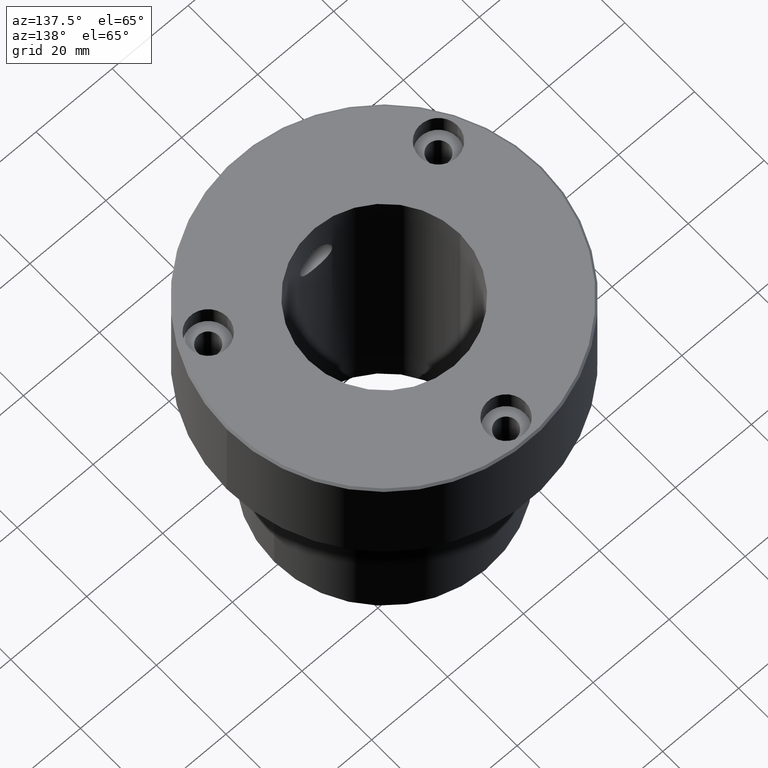
[diagram: clean part render]
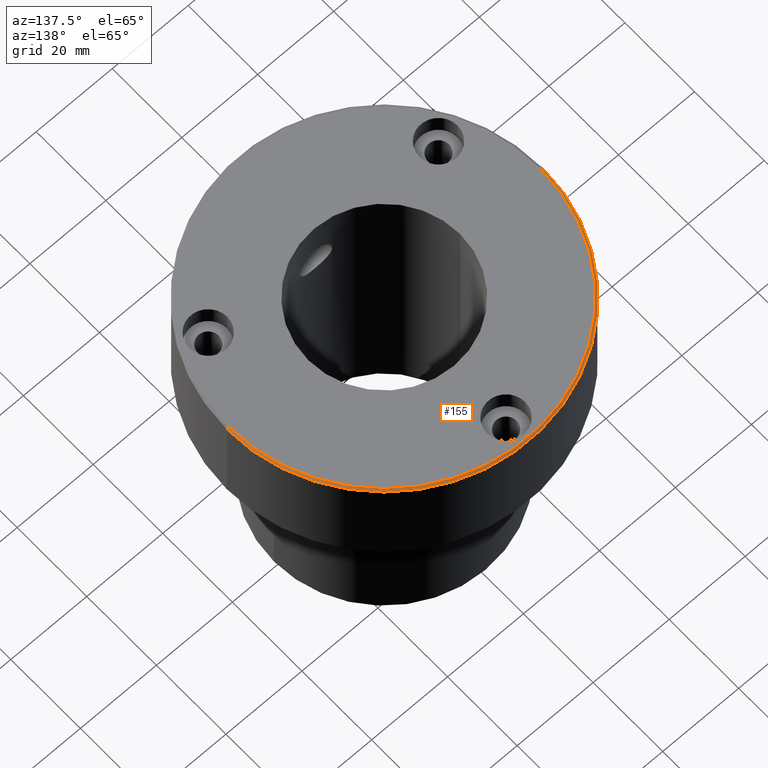
[diagram: same view with one face highlighted and labeled with its STEP entity id]
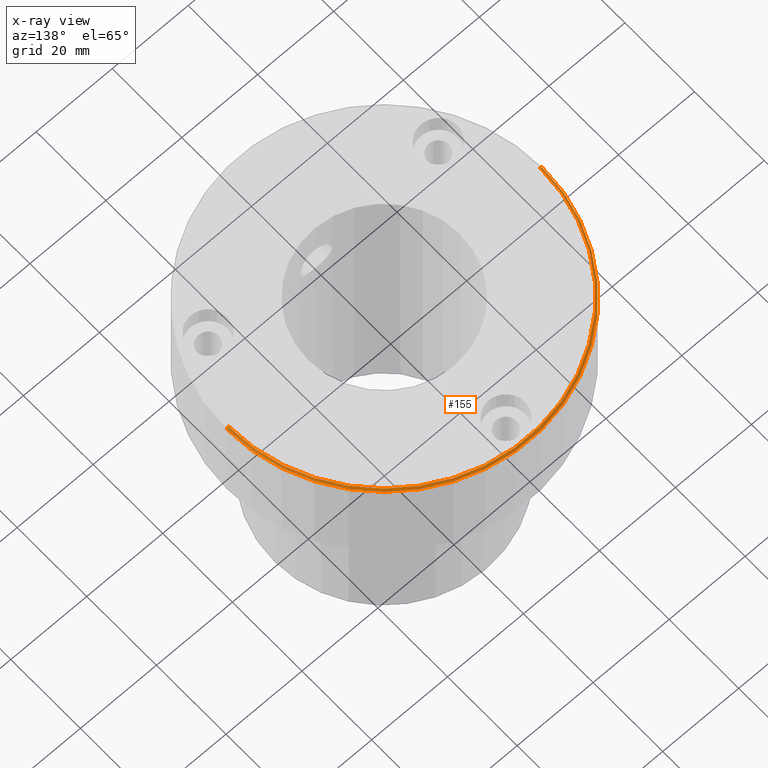
[diagram: x-ray of the same camera — body ghosted, the highlighted face saturated]
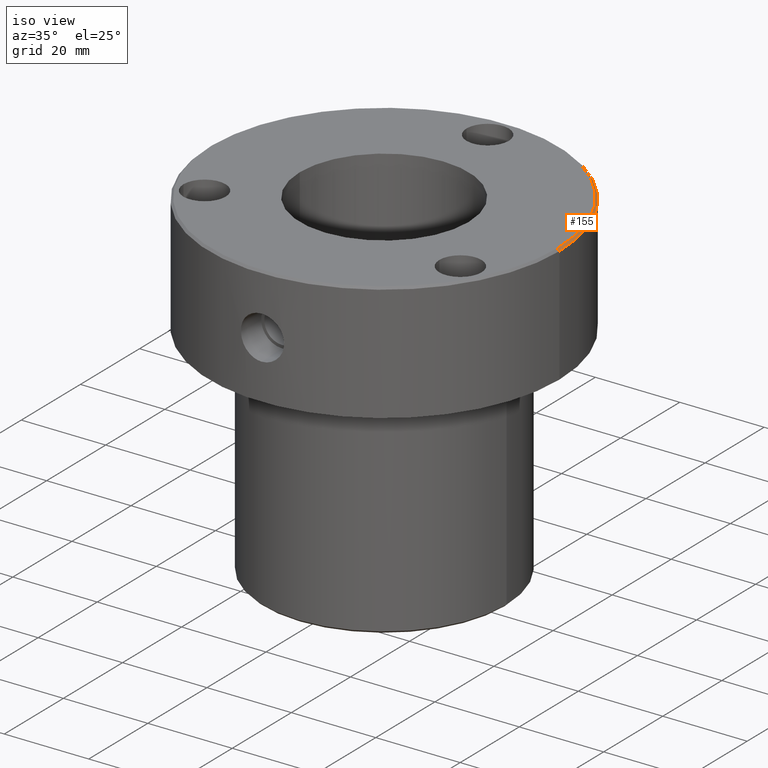
[diagram: same view with one face highlighted and labeled with its STEP entity id]
A machine part, auxiliary view. The second image highlights one B-rep face of the part: STEP entity #155.
The next image is the same camera in x-ray: the body ghosted, the highlighted face saturated — about 0% of this face is hidden behind the body in this view.
A second angle (iso view) of the same face is appended — the face is thin or edge-on in the first view.
In plain terms, the highlighted conical surface has half-angle 45 deg.
Its self-contained STEP definition (entity closure, byte-faithful):
#15 = VERTEX_POINT ( 'NONE', #992 ) ;
#30 = CARTESIAN_POINT ( 'NONE',  ( 0.000000000000000000, 0.000000000000000000, 0.000000000000000000 ) ) ;
#35 = DIRECTION ( 'NONE',  ( -1.000000000000000000, 0.000000000000000000, 0.000000000000000000 ) ) ;
#61 = CARTESIAN_POINT ( 'NONE',  ( -40.99999999999999289, 0.000000000000000000, 0.000000000000000000 ) ) ;
#126 = VERTEX_POINT ( 'NONE', #889 ) ;
#136 = ORIENTED_EDGE ( 'NONE', *, *, #290, .F. ) ;
#155 = ADVANCED_FACE ( 'NONE', ( #160 ), #819, .T. ) ;
#160 = FACE_OUTER_BOUND ( 'NONE', #529, .T. ) ;
#228 = DIRECTION ( 'NONE',  ( 0.000000000000000000, 0.000000000000000000, -1.000000000000000000 ) ) ;
#239 = ORIENTED_EDGE ( 'NONE', *, *, #1021, .F. ) ;
#271 = VECTOR ( 'NONE', #360, 1000.000000000000000 ) ;
#290 = EDGE_CURVE ( 'NONE', #326, #996, #831, .T. ) ;
#296 = CARTESIAN_POINT ( 'NONE',  ( -41.50000000000000000, 5.082284216461515748E-15, -0.5000000000000143219 ) ) ;
#319 = CARTESIAN_POINT ( 'NONE',  ( 40.99999999999999289, 5.021051876504148174E-15, 0.000000000000000000 ) ) ;
#326 = VERTEX_POINT ( 'NONE', #1043 ) ;
#360 = DIRECTION ( 'NONE',  ( -0.7071067811865426878, 0.000000000000000000, -0.7071067811865524577 ) ) ;
#399 = EDGE_CURVE ( 'NONE', #126, #326, #630, .T. ) ;
#413 = LINE ( 'NONE', #319, #989 ) ;
#453 = DIRECTION ( 'NONE',  ( 1.000000000000000000, 0.000000000000000000, 0.000000000000000000 ) ) ;
#504 = AXIS2_PLACEMENT_3D ( 'NONE', #612, #969, #596 ) ;
#529 = EDGE_LOOP ( 'NONE', ( #666, #1063, #239, #136 ) ) ;
#596 = DIRECTION ( 'NONE',  ( 1.000000000000000000, 0.000000000000000000, 0.000000000000000000 ) ) ;
#604 = AXIS2_PLACEMENT_3D ( 'NONE', #30, #228, #35 ) ;
#612 = CARTESIAN_POINT ( 'NONE',  ( 0.000000000000000000, 0.000000000000000000, -0.5000000000000143219 ) ) ;
#630 = CIRCLE ( 'NONE', #1160, 40.99999999999999289 ) ;
#666 = ORIENTED_EDGE ( 'NONE', *, *, #399, .F. ) ;
#696 = DIRECTION ( 'NONE',  ( 0.7071067811865426878, 8.659560562354874926E-17, -0.7071067811865524577 ) ) ;
#819 = CONICAL_SURFACE ( 'NONE', #604, 40.99999999999999289, 0.7853981633974415066 ) ;
#831 = LINE ( 'NONE', #61, #271 ) ;
#835 = DIRECTION ( 'NONE',  ( -0.000000000000000000, -0.000000000000000000, 1.000000000000000000 ) ) ;
#889 = CARTESIAN_POINT ( 'NONE',  ( 40.99999999999999289, 5.051668046482831961E-15, 0.000000000000000000 ) ) ;
#968 = CIRCLE ( 'NONE', #504, 41.50000000000000000 ) ;
#969 = DIRECTION ( 'NONE',  ( 0.000000000000000000, 0.000000000000000000, -1.000000000000000000 ) ) ;
#989 = VECTOR ( 'NONE', #696, 1000.000000000000000 ) ;
#992 = CARTESIAN_POINT ( 'NONE',  ( 41.50000000000000000, 0.000000000000000000, -0.5000000000000143219 ) ) ;
#996 = VERTEX_POINT ( 'NONE', #296 ) ;
#1021 = EDGE_CURVE ( 'NONE', #996, #15, #968, .T. ) ;
#1043 = CARTESIAN_POINT ( 'NONE',  ( -40.99999999999999289, 0.000000000000000000, 0.000000000000000000 ) ) ;
#1063 = ORIENTED_EDGE ( 'NONE', *, *, #1080, .T. ) ;
#1080 = EDGE_CURVE ( 'NONE', #126, #15, #413, .T. ) ;
#1160 = AXIS2_PLACEMENT_3D ( 'NONE', #1212, #835, #453 ) ;
#1212 = CARTESIAN_POINT ( 'NONE',  ( 0.000000000000000000, 0.000000000000000000, 0.000000000000000000 ) ) ;